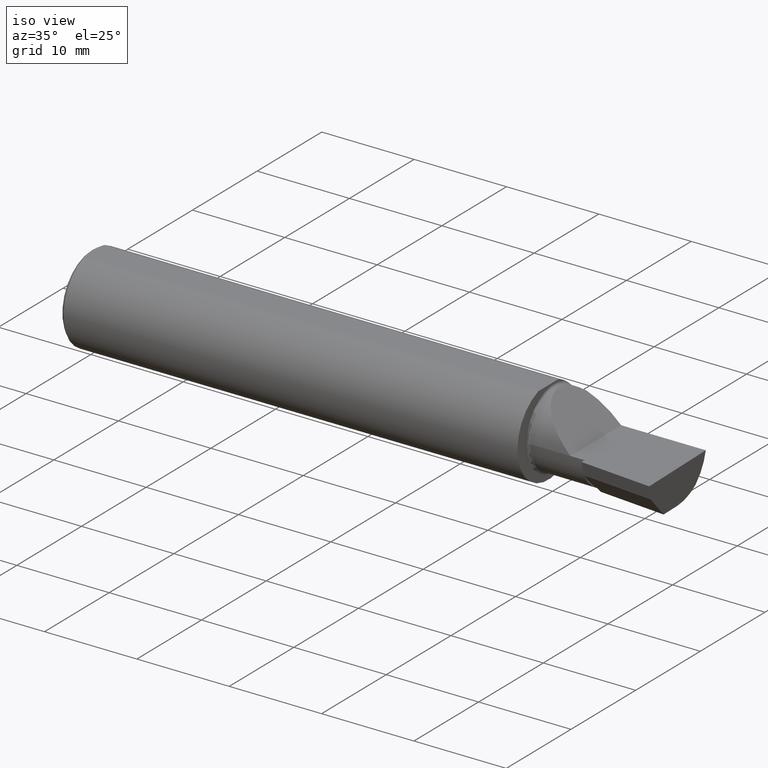
[diagram: clean part render]
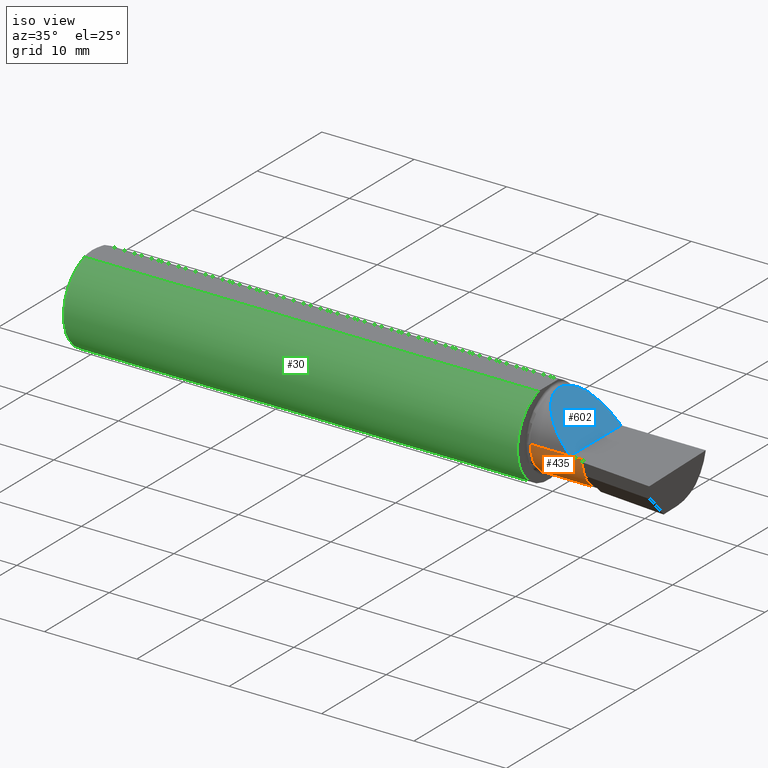
[diagram: same view with three faces highlighted in distinct colors, each labeled with its STEP entity id]
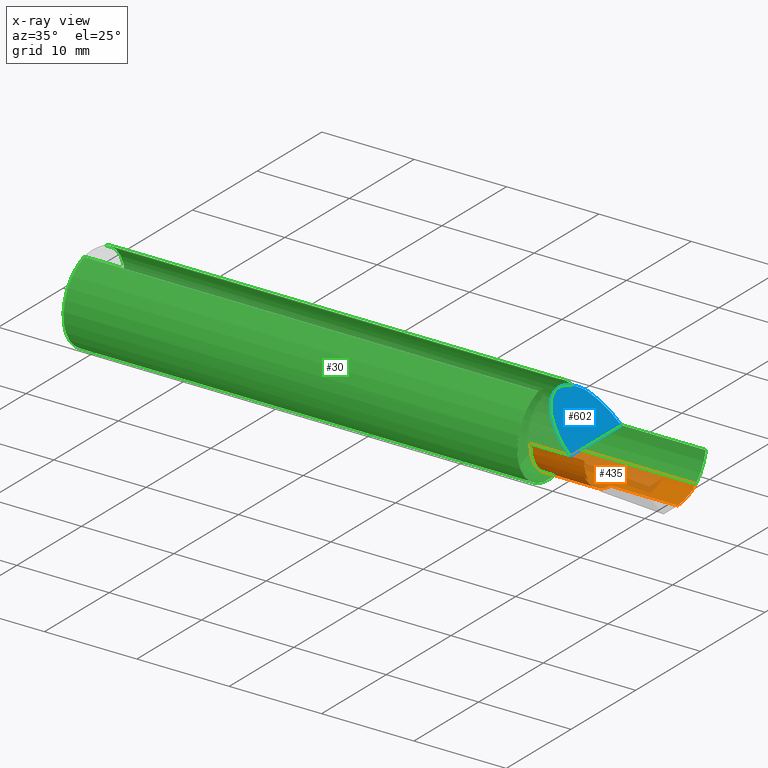
[diagram: x-ray of the same camera — body ghosted, the three highlighted faces saturated]
A machine part, iso view with three faces highlighted in distinct colors.
The next image is the same camera in x-ray (body ghosted, the three faces saturated) — at least one of them is partly hidden behind the body in this view.
Their STEP definitions:

[orange] entity #435 — the highlighted cylindrical surface (partial cylindrical patch) has radius 4.0653 mm, axis along (-1, 0, -0).
#1 = DIRECTION ( 'NONE',  ( -1.000000000000000000, 6.829619984160658046E-18, -0.000000000000000000 ) ) ;
#10 = CARTESIAN_POINT ( 'NONE',  ( 2.178943348991506213, -0.08800230912842126052, -0.1032508154956445351 ) ) ;
#23 = AXIS2_PLACEMENT_3D ( 'NONE', #673, #396, #76 ) ;
#29 = LINE ( 'NONE', #451, #107 ) ;
#35 = CARTESIAN_POINT ( 'NONE',  ( 2.474391802280965447, 0.07789060880782650020, -0.1600499999999999978 ) ) ;
#41 = ORIENTED_EDGE ( 'NONE', *, *, #315, .F. ) ;
#49 = CARTESIAN_POINT ( 'NONE',  ( 2.189999999999999947, -0.04642774919836933911, -0.1363411565314570917 ) ) ;
#57 = CARTESIAN_POINT ( 'NONE',  ( 2.075000000000000178, 0.1454917112299465576, -0.1180346748349053593 ) ) ;
#60 = CARTESIAN_POINT ( 'NONE',  ( 2.189999999999999947, 0.03739999999999998881, 0.000000000000000000 ) ) ;
#61 = EDGE_CURVE ( 'NONE', #362, #595, #698, .T. ) ;
#72 = CARTESIAN_POINT ( 'NONE',  ( 2.185459073836549138, -0.04532669166221831719, -0.1370135507928378904 ) ) ;
#73 = ORIENTED_EDGE ( 'NONE', *, *, #136, .T. ) ;
#74 =( BOUNDED_CURVE ( )  B_SPLINE_CURVE ( 3, ( #400, #563, #299, #557 ),
 .UNSPECIFIED., .F., .T. ) 
 B_SPLINE_CURVE_WITH_KNOTS ( ( 4, 4 ),
 ( 2.879714720919916093, 2.901033340933480087 ),
 .UNSPECIFIED. ) 
 CURVE ( )  GEOMETRIC_REPRESENTATION_ITEM ( )  RATIONAL_B_SPLINE_CURVE ( ( 1.000000000000000000, 0.9999621267286613602, 0.9999621267286613602, 1.000000000000000000 ) ) 
 REPRESENTATION_ITEM ( '' )  );
#76 = DIRECTION ( 'NONE',  ( 0.000000000000000000, -1.000000000000000000, 0.000000000000000000 ) ) ;
#87 = EDGE_CURVE ( 'NONE', #592, #595, #636, .T. ) ;
#89 = EDGE_CURVE ( 'NONE', #681, #641, #619, .T. ) ;
#95 = VECTOR ( 'NONE', #625, 39.37007874015748143 ) ;
#101 = CARTESIAN_POINT ( 'NONE',  ( 2.475476519002682618, 0.03739999999999996799, -0.1600499999999999701 ) ) ;
#107 = VECTOR ( 'NONE', #138, 39.37007874015748143 ) ;
#123 = AXIS2_PLACEMENT_3D ( 'NONE', #164, #1, #697 ) ;
#129 =( BOUNDED_CURVE ( )  B_SPLINE_CURVE ( 3, ( #218, #269, #10, #497 ),
 .UNSPECIFIED., .F., .T. ) 
 B_SPLINE_CURVE_WITH_KNOTS ( ( 4, 4 ),
 ( 5.251556333387601860, 5.766084773522285545 ),
 .UNSPECIFIED. ) 
 CURVE ( )  GEOMETRIC_REPRESENTATION_ITEM ( )  RATIONAL_B_SPLINE_CURVE ( ( 1.000000000000000000, 0.9780597844036217348, 0.9780597844036217348, 1.000000000000000000 ) ) 
 REPRESENTATION_ITEM ( '' )  );
#136 = EDGE_CURVE ( 'NONE', #448, #201, #74, .T. ) ;
#138 = DIRECTION ( 'NONE',  ( 1.000000000000000000, -6.829619984160658046E-18, 0.000000000000000000 ) ) ;
#147 = CIRCLE ( 'NONE', #478, 0.1600499999999999701 ) ;
#164 = CARTESIAN_POINT ( 'NONE',  ( 0.000000000000000000, 0.03740000000000000269, 0.000000000000000000 ) ) ;
#166 = CIRCLE ( 'NONE', #23, 0.1600499999999999701 ) ;
#182 = CARTESIAN_POINT ( 'NONE',  ( 2.187757153469975790, -0.04587823668963943863, -0.1366790178048616633 ) ) ;
#185 = EDGE_CURVE ( 'NONE', #362, #389, #29, .T. ) ;
#189 = EDGE_CURVE ( 'NONE', #201, #389, #166, .T. ) ;
#201 = VERTEX_POINT ( 'NONE', #356 ) ;
#206 = ORIENTED_EDGE ( 'NONE', *, *, #421, .T. ) ;
#217 = CARTESIAN_POINT ( 'NONE',  ( -1.093080678464913235E-18, -0.1226499999999999674, 0.000000000000000000 ) ) ;
#218 = CARTESIAN_POINT ( 'NONE',  ( 2.183105845092545128, -0.04477313427460049428, -0.1373447432684937464 ) ) ;
#240 = EDGE_CURVE ( 'NONE', #381, #241, #483, .T. ) ;
#241 = VERTEX_POINT ( 'NONE', #520 ) ;
#243 = DIRECTION ( 'NONE',  ( -1.000000000000000000, 6.829619984160658046E-18, -0.000000000000000000 ) ) ;
#254 = CARTESIAN_POINT ( 'NONE',  ( 2.475117649406747056, 0.1156304438478837349, -0.1453804992321582057 ) ) ;
#259 = CARTESIAN_POINT ( 'NONE',  ( 2.477555437944267691, 0.1454917112299465576, -0.1180346748349053593 ) ) ;
#262 =( BOUNDED_CURVE ( )  B_SPLINE_CURVE ( 3, ( #306, #35, #254, #259 ),
 .UNSPECIFIED., .F., .T. ) 
 B_SPLINE_CURVE_WITH_KNOTS ( ( 4, 4 ),
 ( 6.060671081087567025, 6.802126725515766914 ),
 .UNSPECIFIED. ) 
 CURVE ( )  GEOMETRIC_REPRESENTATION_ITEM ( )  RATIONAL_B_SPLINE_CURVE ( ( 1.000000000000000000, 0.9547092712975354667, 0.9547092712975354667, 1.000000000000000000 ) ) 
 REPRESENTATION_ITEM ( '' )  );
#269 = CARTESIAN_POINT ( 'NONE',  ( 2.180812283385332506, -0.06859268333180087995, -0.1230935461971111311 ) ) ;
#270 = ORIENTED_EDGE ( 'NONE', *, *, #189, .T. ) ;
#274 = DIRECTION ( 'NONE',  ( -1.000000000000000000, 6.829619984160658046E-18, -0.000000000000000000 ) ) ;
#284 = CARTESIAN_POINT ( 'NONE',  ( 1.960000000000000409, 0.1454917112299467241, -0.1180346748349053038 ) ) ;
#299 = CARTESIAN_POINT ( 'NONE',  ( 2.186045468799003189, -0.1005894066173259327, -0.08109389478699442766 ) ) ;
#306 = CARTESIAN_POINT ( 'NONE',  ( 2.475476519002682618, 0.03739999999999996799, -0.1600499999999999701 ) ) ;
#315 = EDGE_CURVE ( 'NONE', #681, #530, #262, .T. ) ;
#332 = CARTESIAN_POINT ( 'NONE',  ( 2.129999999999999893, -0.1226500000000000784, 2.290089514405551589E-16 ) ) ;
#345 = ORIENTED_EDGE ( 'NONE', *, *, #89, .T. ) ;
#347 = CARTESIAN_POINT ( 'NONE',  ( 2.500000000000000000, 0.03739999999999996799, -0.1600499999999999701 ) ) ;
#354 = AXIS2_PLACEMENT_3D ( 'NONE', #666, #243, #622 ) ;
#356 = CARTESIAN_POINT ( 'NONE',  ( 2.189999999999999947, -0.1000061867039840624, -0.08207035003867028944 ) ) ;
#362 = VERTEX_POINT ( 'NONE', #332 ) ;
#373 = DIRECTION ( 'NONE',  ( -1.000000000000000000, 6.829619984160658046E-18, -0.000000000000000000 ) ) ;
#374 = EDGE_CURVE ( 'NONE', #641, #381, #147, .T. ) ;
#375 = DIRECTION ( 'NONE',  ( 0.000000000000000000, -1.000000000000000000, 0.000000000000000000 ) ) ;
#380 = CARTESIAN_POINT ( 'NONE',  ( 2.177622056381672611, -0.1017244575405930607, -0.07912261253292700303 ) ) ;
#381 = VERTEX_POINT ( 'NONE', #49 ) ;
#389 = VERTEX_POINT ( 'NONE', #538 ) ;
#396 = DIRECTION ( 'NONE',  ( -1.000000000000000000, 6.829619984160658046E-18, -0.000000000000000000 ) ) ;
#400 = CARTESIAN_POINT ( 'NONE',  ( 2.177622056381672611, -0.1017244575405930607, -0.07912261253292700303 ) ) ;
#413 = EDGE_CURVE ( 'NONE', #530, #592, #549, .T. ) ;
#420 = ORIENTED_EDGE ( 'NONE', *, *, #374, .T. ) ;
#421 = EDGE_CURVE ( 'NONE', #241, #448, #129, .T. ) ;
#435 = ADVANCED_FACE ( 'NONE', ( #644 ), #648, .T. ) ;
#448 = VERTEX_POINT ( 'NONE', #380 ) ;
#451 = CARTESIAN_POINT ( 'NONE',  ( -1.093080678464824064E-18, -0.1226499999999999396, 5.644462552563044730E-16 ) ) ;
#478 = AXIS2_PLACEMENT_3D ( 'NONE', #60, #594, #375 ) ;
#483 =( BOUNDED_CURVE ( )  B_SPLINE_CURVE ( 3, ( #662, #182, #72, #613 ),
 .UNSPECIFIED., .F., .T. ) 
 B_SPLINE_CURVE_WITH_KNOTS ( ( 4, 4 ),
 ( 3.382151966246107477, 3.394243161054599334 ),
 .UNSPECIFIED. ) 
 CURVE ( )  GEOMETRIC_REPRESENTATION_ITEM ( )  RATIONAL_B_SPLINE_CURVE ( ( 1.000000000000000000, 0.9999878169544487161, 0.9999878169544487161, 1.000000000000000000 ) ) 
 REPRESENTATION_ITEM ( '' )  );
#497 = CARTESIAN_POINT ( 'NONE',  ( 2.177622056381672611, -0.1017244575405930607, -0.07912261253292700303 ) ) ;
#500 = CARTESIAN_POINT ( 'NONE',  ( 1.960000000000000409, -0.1226500000000000506, 0.000000000000000000 ) ) ;
#520 = CARTESIAN_POINT ( 'NONE',  ( 2.183105845092545128, -0.04477313427460049428, -0.1373447432684937464 ) ) ;
#527 = CARTESIAN_POINT ( 'NONE',  ( 2.189999999999999947, 0.03739999999999996799, -0.1600499999999999701 ) ) ;
#530 = VERTEX_POINT ( 'NONE', #672 ) ;
#538 = CARTESIAN_POINT ( 'NONE',  ( 2.189999999999999947, -0.1226499999999999813, 0.000000000000000000 ) ) ;
#539 = ORIENTED_EDGE ( 'NONE', *, *, #413, .F. ) ;
#549 = LINE ( 'NONE', #57, #627 ) ;
#557 = CARTESIAN_POINT ( 'NONE',  ( 2.189999999999999947, -0.1000061867039840624, -0.08207035003867028944 ) ) ;
#563 = CARTESIAN_POINT ( 'NONE',  ( 2.181919331322569544, -0.1011621852558630547, -0.08011127840351645046 ) ) ;
#569 = VECTOR ( 'NONE', #373, 39.37007874015748143 ) ;
#591 = ORIENTED_EDGE ( 'NONE', *, *, #240, .T. ) ;
#592 = VERTEX_POINT ( 'NONE', #284 ) ;
#594 = DIRECTION ( 'NONE',  ( -1.000000000000000000, 6.829619984160658046E-18, -0.000000000000000000 ) ) ;
#595 = VERTEX_POINT ( 'NONE', #500 ) ;
#611 = EDGE_LOOP ( 'NONE', ( #694, #642, #684, #539, #41, #345, #420, #591, #206, #73, #270 ) ) ;
#613 = CARTESIAN_POINT ( 'NONE',  ( 2.183105845092545128, -0.04477313427460049428, -0.1373447432684937464 ) ) ;
#619 = LINE ( 'NONE', #347, #95 ) ;
#622 = DIRECTION ( 'NONE',  ( 0.000000000000000000, -1.000000000000000000, 0.000000000000000000 ) ) ;
#625 = DIRECTION ( 'NONE',  ( -1.000000000000000000, -0.000000000000000000, -0.000000000000000000 ) ) ;
#627 = VECTOR ( 'NONE', #274, 39.37007874015748143 ) ;
#636 = CIRCLE ( 'NONE', #354, 0.1600500000000000533 ) ;
#641 = VERTEX_POINT ( 'NONE', #527 ) ;
#642 = ORIENTED_EDGE ( 'NONE', *, *, #61, .T. ) ;
#644 = FACE_OUTER_BOUND ( 'NONE', #611, .T. ) ;
#648 = CYLINDRICAL_SURFACE ( 'NONE', #123, 0.1600499999999999701 ) ;
#662 = CARTESIAN_POINT ( 'NONE',  ( 2.189999999999999947, -0.04642774919836933911, -0.1363411565314570917 ) ) ;
#666 = CARTESIAN_POINT ( 'NONE',  ( 1.960000000000000409, 0.03739999999999999575, 0.000000000000000000 ) ) ;
#672 = CARTESIAN_POINT ( 'NONE',  ( 2.477555437944267691, 0.1454917112299465576, -0.1180346748349053593 ) ) ;
#673 = CARTESIAN_POINT ( 'NONE',  ( 2.189999999999999947, 0.03739999999999998881, 0.000000000000000000 ) ) ;
#681 = VERTEX_POINT ( 'NONE', #101 ) ;
#684 = ORIENTED_EDGE ( 'NONE', *, *, #87, .F. ) ;
#694 = ORIENTED_EDGE ( 'NONE', *, *, #185, .F. ) ;
#697 = DIRECTION ( 'NONE',  ( -6.829619984160658816E-18, -1.000000000000000000, 0.000000000000000000 ) ) ;
#698 = LINE ( 'NONE', #217, #569 ) ;

[blue] entity #602 — the highlighted planar face has unit normal (-0.7071, 0, -0.7071).
#3 = CARTESIAN_POINT ( 'NONE',  ( 1.902393788885675230, 0.02584108761840278254, 0.2276062111143223043 ) ) ;
#7 = EDGE_CURVE ( 'NONE', #279, #362, #379, .T. ) ;
#21 = CARTESIAN_POINT ( 'NONE',  ( 2.129999999999999893, 0.1873499999999998222, 2.290089514405551589E-16 ) ) ;
#40 = CARTESIAN_POINT ( 'NONE',  ( 2.045676520271627830, 0.1728409665178085586, 0.08432347972837210548 ) ) ;
#82 = ORIENTED_EDGE ( 'NONE', *, *, #309, .F. ) ;
#104 = VERTEX_POINT ( 'NONE', #21 ) ;
#116 = ORIENTED_EDGE ( 'NONE', *, *, #7, .T. ) ;
#191 =( BOUNDED_CURVE ( )  B_SPLINE_CURVE ( 3, ( #367, #40, #575, #198 ),
 .UNSPECIFIED., .F., .T. ) 
 B_SPLINE_CURVE_WITH_KNOTS ( ( 4, 4 ),
 ( 0.8892144209076978667, 1.570796326794894560 ),
 .UNSPECIFIED. ) 
 CURVE ( )  GEOMETRIC_REPRESENTATION_ITEM ( )  RATIONAL_B_SPLINE_CURVE ( ( 1.000000000000000000, 0.9616603987079550553, 0.9616603987079550553, 1.000000000000000000 ) ) 
 REPRESENTATION_ITEM ( '' )  );
#198 = CARTESIAN_POINT ( 'NONE',  ( 2.129999999999999893, 0.1873499999999998222, 2.290089514405551589E-16 ) ) ;
#238 = FACE_OUTER_BOUND ( 'NONE', #455, .T. ) ;
#245 = DIRECTION ( 'NONE',  ( -0.000000000000000000, 1.000000000000000000, -0.000000000000000000 ) ) ;
#279 = VERTEX_POINT ( 'NONE', #523 ) ;
#309 = EDGE_CURVE ( 'NONE', #279, #104, #191, .T. ) ;
#332 = CARTESIAN_POINT ( 'NONE',  ( 2.129999999999999893, -0.1226500000000000784, 2.290089514405551589E-16 ) ) ;
#349 = PLANE ( 'NONE',  #554 ) ;
#362 = VERTEX_POINT ( 'NONE', #332 ) ;
#367 = CARTESIAN_POINT ( 'NONE',  ( 2.011965325165093965, 0.1454917112299464743, 0.1180346748349054425 ) ) ;
#379 =( BOUNDED_CURVE ( )  B_SPLINE_CURVE ( 3, ( #491, #3, #610, #551 ),
 .UNSPECIFIED., .F., .T. ) 
 B_SPLINE_CURVE_WITH_KNOTS ( ( 4, 4 ),
 ( 5.541729662751386343, 7.853981633974481014 ),
 .UNSPECIFIED. ) 
 CURVE ( )  GEOMETRIC_REPRESENTATION_ITEM ( )  RATIONAL_B_SPLINE_CURVE ( ( 1.000000000000000000, 0.6019254882129727591, 0.6019254882129727591, 1.000000000000000000 ) ) 
 REPRESENTATION_ITEM ( '' )  );
#455 = EDGE_LOOP ( 'NONE', ( #82, #116, #639 ) ) ;
#491 = CARTESIAN_POINT ( 'NONE',  ( 2.011965325165093965, 0.1454917112299464743, 0.1180346748349054425 ) ) ;
#507 = EDGE_CURVE ( 'NONE', #362, #104, #566, .T. ) ;
#523 = CARTESIAN_POINT ( 'NONE',  ( 2.011965325165093965, 0.1454917112299464743, 0.1180346748349054425 ) ) ;
#551 = CARTESIAN_POINT ( 'NONE',  ( 2.129999999999999893, -0.1226500000000000784, 2.290089514405551589E-16 ) ) ;
#554 = AXIS2_PLACEMENT_3D ( 'NONE', #664, #612, #667 ) ;
#566 = LINE ( 'NONE', #618, #604 ) ;
#575 = CARTESIAN_POINT ( 'NONE',  ( 2.086590019116435268, 0.1873499999999998777, 0.04340998088356459728 ) ) ;
#602 = ADVANCED_FACE ( 'NONE', ( #238 ), #349, .F. ) ;
#604 = VECTOR ( 'NONE', #245, 39.37007874015748143 ) ;
#610 = CARTESIAN_POINT ( 'NONE',  ( 1.967758842172328437, -0.1226499999999996759, 0.1622411578276702349 ) ) ;
#612 = DIRECTION ( 'NONE',  ( -0.7071067811865433539, 0.000000000000000000, -0.7071067811865517916 ) ) ;
#618 = CARTESIAN_POINT ( 'NONE',  ( 2.129999999999999893, -0.2500000000000000555, 2.290089514405551589E-16 ) ) ;
#639 = ORIENTED_EDGE ( 'NONE', *, *, #507, .T. ) ;
#664 = CARTESIAN_POINT ( 'NONE',  ( 2.129999999999999893, -0.2500000000000000555, 2.290089514405551589E-16 ) ) ;
#667 = DIRECTION ( 'NONE',  ( -0.7071067811865516806, 0.000000000000000000, 0.7071067811865432429 ) ) ;

[green] entity #30 — the highlighted cylindrical surface (partial cylindrical patch) has radius 4.7587 mm, axis along (-1, -0, -0).
#6 = CARTESIAN_POINT ( 'NONE',  ( 1.950000000000000178, -0.06039039658753697637, 0.1773499999999999799 ) ) ;
#8 = ORIENTED_EDGE ( 'NONE', *, *, #97, .T. ) ;
#17 = DIRECTION ( 'NONE',  ( 1.000000000000000000, -6.829619984160658046E-18, 0.000000000000000000 ) ) ;
#19 = CARTESIAN_POINT ( 'NONE',  ( 1.957909242887170276, 0.1445870704379408622, -0.1191421054870969581 ) ) ;
#21 = CARTESIAN_POINT ( 'NONE',  ( 2.129999999999999893, 0.1873499999999998222, 2.290089514405551589E-16 ) ) ;
#24 = CARTESIAN_POINT ( 'NONE',  ( 1.958770022656895371, 0.1452078353828880897, -0.1183847404910813444 ) ) ;
#27 = ORIENTED_EDGE ( 'NONE', *, *, #268, .F. ) ;
#30 = ADVANCED_FACE ( 'NONE', ( #439 ), #649, .T. ) ;
#32 = CARTESIAN_POINT ( 'NONE',  ( 2.485269663752128988, 0.1873500000000000443, -0.04340998088356425727 ) ) ;
#33 = EDGE_CURVE ( 'NONE', #215, #77, #122, .T. ) ;
#40 = CARTESIAN_POINT ( 'NONE',  ( 2.045676520271627830, 0.1728409665178085586, 0.08432347972837210548 ) ) ;
#57 = CARTESIAN_POINT ( 'NONE',  ( 2.075000000000000178, 0.1454917112299465576, -0.1180346748349053593 ) ) ;
#65 = DIRECTION ( 'NONE',  ( -1.000000000000000000, 6.829619984160658046E-18, -0.000000000000000000 ) ) ;
#67 = CARTESIAN_POINT ( 'NONE',  ( 0.000000000000000000, 0.06039039658753699719, 0.1773499999999999799 ) ) ;
#69 = CARTESIAN_POINT ( 'NONE',  ( 0.000000000000000000, 0.000000000000000000, 0.000000000000000000 ) ) ;
#77 = VERTEX_POINT ( 'NONE', #6 ) ;
#91 = CARTESIAN_POINT ( 'NONE',  ( 1.950000000000000178, 0.000000000000000000, 0.000000000000000000 ) ) ;
#97 = EDGE_CURVE ( 'NONE', #77, #499, #561, .T. ) ;
#99 = CARTESIAN_POINT ( 'NONE',  ( 2.490409415965618933, 0.1873499999999998777, 1.722253598772638556E-16 ) ) ;
#100 = ORIENTED_EDGE ( 'NONE', *, *, #309, .T. ) ;
#104 = VERTEX_POINT ( 'NONE', #21 ) ;
#122 = CIRCLE ( 'NONE', #459, 0.1873499999999999888 ) ;
#124 =( BOUNDED_CURVE ( )  B_SPLINE_CURVE ( 3, ( #529, #152, #32, #99 ),
 .UNSPECIFIED., .F., .T. ) 
 B_SPLINE_CURVE_WITH_KNOTS ( ( 4, 4 ),
 ( 0.6667001948156788815, 1.348282100702878017 ),
 .UNSPECIFIED. ) 
 CURVE ( )  GEOMETRIC_REPRESENTATION_ITEM ( )  RATIONAL_B_SPLINE_CURVE ( ( 1.000000000000000000, 0.9616603987079548332, 0.9616603987079548332, 1.000000000000000000 ) ) 
 REPRESENTATION_ITEM ( '' )  );
#130 = CARTESIAN_POINT ( 'NONE',  ( 1.960000000000000409, 0.1454917112299468074, 0.1180346748349052344 ) ) ;
#137 = CARTESIAN_POINT ( 'NONE',  ( 1.960000000000000409, 0.1454917112299467241, -0.1180346748349053038 ) ) ;
#142 = CARTESIAN_POINT ( 'NONE',  ( 0.000000000000000000, -0.06039039658753694861, 0.1773499999999999799 ) ) ;
#150 = CARTESIAN_POINT ( 'NONE',  ( 1.950000000000000178, 0.06039039658753701106, 0.1773499999999999799 ) ) ;
#152 = CARTESIAN_POINT ( 'NONE',  ( 2.480814183058313027, 0.1728409665178086974, -0.08432347972837193895 ) ) ;
#165 = EDGE_CURVE ( 'NONE', #280, #279, #235, .T. ) ;
#169 = ORIENTED_EDGE ( 'NONE', *, *, #261, .T. ) ;
#171 = DIRECTION ( 'NONE',  ( 0.000000000000000000, 0.000000000000000000, 1.000000000000000000 ) ) ;
#178 = CARTESIAN_POINT ( 'NONE',  ( 1.956216587669451057, 0.1423502170013168922, 0.1218111458006545245 ) ) ;
#179 = ORIENTED_EDGE ( 'NONE', *, *, #476, .T. ) ;
#186 = AXIS2_PLACEMENT_3D ( 'NONE', #249, #200, #303 ) ;
#191 =( BOUNDED_CURVE ( )  B_SPLINE_CURVE ( 3, ( #367, #40, #575, #198 ),
 .UNSPECIFIED., .F., .T. ) 
 B_SPLINE_CURVE_WITH_KNOTS ( ( 4, 4 ),
 ( 0.8892144209076978667, 1.570796326794894560 ),
 .UNSPECIFIED. ) 
 CURVE ( )  GEOMETRIC_REPRESENTATION_ITEM ( )  RATIONAL_B_SPLINE_CURVE ( ( 1.000000000000000000, 0.9616603987079550553, 0.9616603987079550553, 1.000000000000000000 ) ) 
 REPRESENTATION_ITEM ( '' )  );
#194 = LINE ( 'NONE', #67, #388 ) ;
#195 = CARTESIAN_POINT ( 'NONE',  ( 0.01499999999999999424, 0.000000000000000000, 0.000000000000000000 ) ) ;
#198 = CARTESIAN_POINT ( 'NONE',  ( 2.129999999999999893, 0.1873499999999998222, 2.290089514405551589E-16 ) ) ;
#199 = CARTESIAN_POINT ( 'NONE',  ( 1.950000000000000178, 0.1013606951871656864, 0.1575627873933895529 ) ) ;
#200 = DIRECTION ( 'NONE',  ( -1.000000000000000000, -0.000000000000000000, -0.000000000000000000 ) ) ;
#207 = CIRCLE ( 'NONE', #589, 0.1873499999999999888 ) ;
#211 = DIRECTION ( 'NONE',  ( -1.000000000000000000, 6.829619984160658046E-18, -0.000000000000000000 ) ) ;
#215 = VERTEX_POINT ( 'NONE', #510 ) ;
#216 = CARTESIAN_POINT ( 'NONE',  ( 1.957580800664966425, 0.1442412736056271627, 0.1195608849622520758 ) ) ;
#225 = CARTESIAN_POINT ( 'NONE',  ( 1.950000000000000178, 0.1013606951871656864, 0.1575627873933895529 ) ) ;
#227 = AXIS2_PLACEMENT_3D ( 'NONE', #69, #285, #171 ) ;
#229 = EDGE_CURVE ( 'NONE', #607, #499, #515, .T. ) ;
#230 = CARTESIAN_POINT ( 'NONE',  ( 2.490409415965618933, 0.1873499999999998777, 1.722253598772638556E-16 ) ) ;
#235 = LINE ( 'NONE', #350, #411 ) ;
#242 = CARTESIAN_POINT ( 'NONE',  ( 1.950483388365422677, 0.1180160148311073798, -0.1458664675357447260 ) ) ;
#249 = CARTESIAN_POINT ( 'NONE',  ( 0.01499999999999999424, 0.000000000000000000, 0.000000000000000000 ) ) ;
#257 = ORIENTED_EDGE ( 'NONE', *, *, #33, .T. ) ;
#261 = EDGE_CURVE ( 'NONE', #311, #689, #207, .T. ) ;
#268 = EDGE_CURVE ( 'NONE', #530, #477, #124, .T. ) ;
#273 = EDGE_CURVE ( 'NONE', #307, #607, #489, .T. ) ;
#274 = DIRECTION ( 'NONE',  ( -1.000000000000000000, 6.829619984160658046E-18, -0.000000000000000000 ) ) ;
#275 = AXIS2_PLACEMENT_3D ( 'NONE', #195, #572, #302 ) ;
#279 = VERTEX_POINT ( 'NONE', #523 ) ;
#280 = VERTEX_POINT ( 'NONE', #467 ) ;
#284 = CARTESIAN_POINT ( 'NONE',  ( 1.960000000000000409, 0.1454917112299467241, -0.1180346748349053038 ) ) ;
#285 = DIRECTION ( 'NONE',  ( -1.000000000000000000, -0.000000000000000000, -0.000000000000000000 ) ) ;
#286 = ORIENTED_EDGE ( 'NONE', *, *, #229, .F. ) ;
#293 = CARTESIAN_POINT ( 'NONE',  ( 1.950000000000000178, 0.1013606951871656864, -0.1575627873933895529 ) ) ;
#298 = CARTESIAN_POINT ( 'NONE',  ( 1.954404192622242409, 0.1382376748423440327, -0.1264781021717292508 ) ) ;
#302 = DIRECTION ( 'NONE',  ( 0.000000000000000000, 0.000000000000000000, 1.000000000000000000 ) ) ;
#303 = DIRECTION ( 'NONE',  ( 0.000000000000000000, 0.000000000000000000, 1.000000000000000000 ) ) ;
#304 = VECTOR ( 'NONE', #403, 39.37007874015748143 ) ;
#307 = VERTEX_POINT ( 'NONE', #677 ) ;
#309 = EDGE_CURVE ( 'NONE', #279, #104, #191, .T. ) ;
#311 = VERTEX_POINT ( 'NONE', #150 ) ;
#341 = ORIENTED_EDGE ( 'NONE', *, *, #528, .T. ) ;
#342 = CARTESIAN_POINT ( 'NONE',  ( 0.01499999999999999424, 0.000000000000000000, -0.1873499999999999888 ) ) ;
#346 = CARTESIAN_POINT ( 'NONE',  ( 1.956208682939483579, 0.1423361566194927541, -0.1218275716760978261 ) ) ;
#350 = CARTESIAN_POINT ( 'NONE',  ( 2.075000000000000178, 0.1454917112299465576, 0.1180346748349053593 ) ) ;
#353 = CARTESIAN_POINT ( 'NONE',  ( 1.956664569472227777, 0.1431262185210676885, -0.1208975608635248222 ) ) ;
#367 = CARTESIAN_POINT ( 'NONE',  ( 2.011965325165093965, 0.1454917112299464743, 0.1180346748349054425 ) ) ;
#368 = ORIENTED_EDGE ( 'NONE', *, *, #165, .T. ) ;
#388 = VECTOR ( 'NONE', #661, 39.37007874015748143 ) ;
#392 = CARTESIAN_POINT ( 'NONE',  ( 1.957921033727478610, 0.1445976381173497138, 0.1191292621734213464 ) ) ;
#395 = CARTESIAN_POINT ( 'NONE',  ( 1.952858161161656891, 0.1330631366558206741, -0.1319833113027339411 ) ) ;
#403 = DIRECTION ( 'NONE',  ( -1.000000000000000000, -0.000000000000000000, -0.000000000000000000 ) ) ;
#406 = LINE ( 'NONE', #621, #657 ) ;
#411 = VECTOR ( 'NONE', #17, 39.37007874015748143 ) ;
#413 = EDGE_CURVE ( 'NONE', #530, #592, #549, .T. ) ;
#431 = EDGE_CURVE ( 'NONE', #689, #280, #521, .T. ) ;
#432 = CARTESIAN_POINT ( 'NONE',  ( 1.954402240695038984, 0.1382337250035445830, 0.1264828452200233155 ) ) ;
#439 = FACE_OUTER_BOUND ( 'NONE', #506, .T. ) ;
#446 = CARTESIAN_POINT ( 'NONE',  ( 1.952149571221041047, 0.1293863363941682720, 0.1355911774285943894 ) ) ;
#450 = CARTESIAN_POINT ( 'NONE',  ( 1.950000000000001066, 0.1099295023601599836, -0.1520504436074740784 ) ) ;
#459 = AXIS2_PLACEMENT_3D ( 'NONE', #501, #65, #654 ) ;
#461 = CARTESIAN_POINT ( 'NONE',  ( 1.957567572594821392, 0.1442269357022577247, -0.1195781817710042938 ) ) ;
#467 = CARTESIAN_POINT ( 'NONE',  ( 1.960000000000000409, 0.1454917112299468074, 0.1180346748349052344 ) ) ;
#476 = EDGE_CURVE ( 'NONE', #592, #215, #504, .T. ) ;
#477 = VERTEX_POINT ( 'NONE', #230 ) ;
#482 = ORIENTED_EDGE ( 'NONE', *, *, #577, .T. ) ;
#484 = CARTESIAN_POINT ( 'NONE',  ( 1.950493306168247676, 0.1180879943980261970, 0.1458023451353284428 ) ) ;
#487 = CARTESIAN_POINT ( 'NONE',  ( 1.952845212421890908, 0.1330145888620361538, 0.1320338710448777375 ) ) ;
#489 = CIRCLE ( 'NONE', #186, 0.1873499999999999888 ) ;
#490 = CARTESIAN_POINT ( 'NONE',  ( 1.949999999999999956, 0.1100056335683312903, 0.1520014681335481455 ) ) ;
#493 = CARTESIAN_POINT ( 'NONE',  ( 1.958780002058964520, 0.1452129146512413094, 0.1183784924451697917 ) ) ;
#499 = VERTEX_POINT ( 'NONE', #562 ) ;
#501 = CARTESIAN_POINT ( 'NONE',  ( 1.950000000000000178, 0.000000000000000000, 0.000000000000000000 ) ) ;
#504 = B_SPLINE_CURVE_WITH_KNOTS ( 'NONE', 3,
 ( #137, #552, #24, #19, #461, #353, #346, #616, #298, #395, #518, #242, #450, #293 ),
 .UNSPECIFIED., .F., .F.,
 ( 4, 2, 2, 2, 2, 2, 4 ),
 ( 1.967643392425213483E-07, 5.001319782644750143E-05, 9.982963131365247373E-05, 0.0001994624982880524979, 0.0003987282322368515433, 0.0007972597001344497968, 0.001594322635929644027 ),
 .UNSPECIFIED. ) ;
#506 = EDGE_LOOP ( 'NONE', ( #27, #576, #179, #257, #8, #286, #600, #341, #169, #692, #368, #100, #482 ) ) ;
#510 = CARTESIAN_POINT ( 'NONE',  ( 1.950000000000000178, 0.1013606951871656864, -0.1575627873933895529 ) ) ;
#515 = CIRCLE ( 'NONE', #275, 0.1873499999999999888 ) ;
#518 = CARTESIAN_POINT ( 'NONE',  ( 1.952152469637252308, 0.1294082664155005447, -0.1355718222394608763 ) ) ;
#521 = B_SPLINE_CURVE_WITH_KNOTS ( 'NONE', 3,
 ( #225, #490, #484, #446, #487, #432, #658, #178, #546, #216, #392, #493, #608, #130 ),
 .UNSPECIFIED., .F., .F.,
 ( 4, 2, 2, 2, 2, 2, 4 ),
 ( 0.0006605532644857072368, 0.001446564801351201551, 0.001839570569783948763, 0.002036073454000322802, 0.002134324896108513291, 0.002183450617162613957, 0.002232576338216714622 ),
 .UNSPECIFIED. ) ;
#523 = CARTESIAN_POINT ( 'NONE',  ( 2.011965325165093965, 0.1454917112299464743, 0.1180346748349054425 ) ) ;
#528 = EDGE_CURVE ( 'NONE', #307, #311, #194, .T. ) ;
#529 = CARTESIAN_POINT ( 'NONE',  ( 2.477555437944267691, 0.1454917112299465576, -0.1180346748349053593 ) ) ;
#530 = VERTEX_POINT ( 'NONE', #672 ) ;
#546 = CARTESIAN_POINT ( 'NONE',  ( 1.956674049009442085, 0.1431412424162806785, 0.1208797671938524609 ) ) ;
#549 = LINE ( 'NONE', #57, #627 ) ;
#552 = CARTESIAN_POINT ( 'NONE',  ( 1.959335809113324389, 0.1454917112299468351, -0.1180346748349050817 ) ) ;
#561 = LINE ( 'NONE', #142, #304 ) ;
#562 = CARTESIAN_POINT ( 'NONE',  ( 0.01499999999999997863, -0.06039039658753695555, 0.1773499999999999799 ) ) ;
#572 = DIRECTION ( 'NONE',  ( -1.000000000000000000, -0.000000000000000000, -0.000000000000000000 ) ) ;
#575 = CARTESIAN_POINT ( 'NONE',  ( 2.086590019116435268, 0.1873499999999998777, 0.04340998088356459728 ) ) ;
#576 = ORIENTED_EDGE ( 'NONE', *, *, #413, .T. ) ;
#577 = EDGE_CURVE ( 'NONE', #104, #477, #406, .T. ) ;
#589 = AXIS2_PLACEMENT_3D ( 'NONE', #91, #211, #638 ) ;
#592 = VERTEX_POINT ( 'NONE', #284 ) ;
#600 = ORIENTED_EDGE ( 'NONE', *, *, #273, .F. ) ;
#607 = VERTEX_POINT ( 'NONE', #342 ) ;
#608 = CARTESIAN_POINT ( 'NONE',  ( 1.959343186359709943, 0.1454917112302226423, 0.1180346748345669078 ) ) ;
#616 = CARTESIAN_POINT ( 'NONE',  ( 1.954992410154055893, 0.1399157128067672340, -0.1246181391956578954 ) ) ;
#621 = CARTESIAN_POINT ( 'NONE',  ( 8.889029578031509911E-32, 0.1873499999999999610, 5.644462552563044730E-16 ) ) ;
#624 = DIRECTION ( 'NONE',  ( 1.000000000000000000, 0.000000000000000000, 0.000000000000000000 ) ) ;
#627 = VECTOR ( 'NONE', #274, 39.37007874015748143 ) ;
#638 = DIRECTION ( 'NONE',  ( 0.000000000000000000, -1.000000000000000000, 0.000000000000000000 ) ) ;
#649 = CYLINDRICAL_SURFACE ( 'NONE', #227, 0.1873499999999999888 ) ;
#654 = DIRECTION ( 'NONE',  ( 0.000000000000000000, -1.000000000000000000, 0.000000000000000000 ) ) ;
#657 = VECTOR ( 'NONE', #624, 39.37007874015748143 ) ;
#658 = CARTESIAN_POINT ( 'NONE',  ( 1.954997648858496806, 0.1399294360413334548, 0.1246027428089594158 ) ) ;
#661 = DIRECTION ( 'NONE',  ( 1.000000000000000000, 0.000000000000000000, 0.000000000000000000 ) ) ;
#672 = CARTESIAN_POINT ( 'NONE',  ( 2.477555437944267691, 0.1454917112299465576, -0.1180346748349053593 ) ) ;
#677 = CARTESIAN_POINT ( 'NONE',  ( 0.01499999999999999424, 0.06039039658753699719, 0.1773499999999999799 ) ) ;
#689 = VERTEX_POINT ( 'NONE', #199 ) ;
#692 = ORIENTED_EDGE ( 'NONE', *, *, #431, .T. ) ;